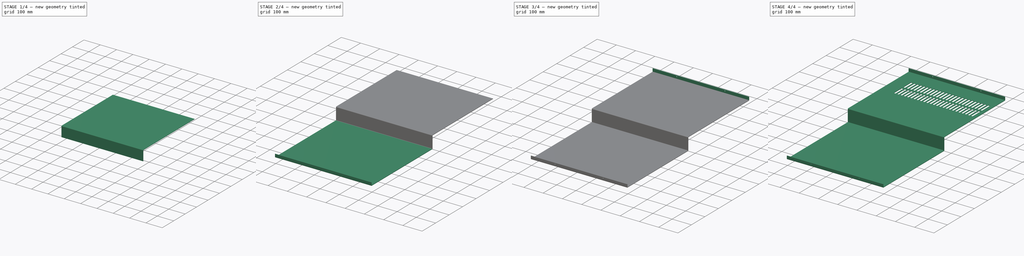
[diagram: build sequence overview — one tinted view per stage of 4, left to right]
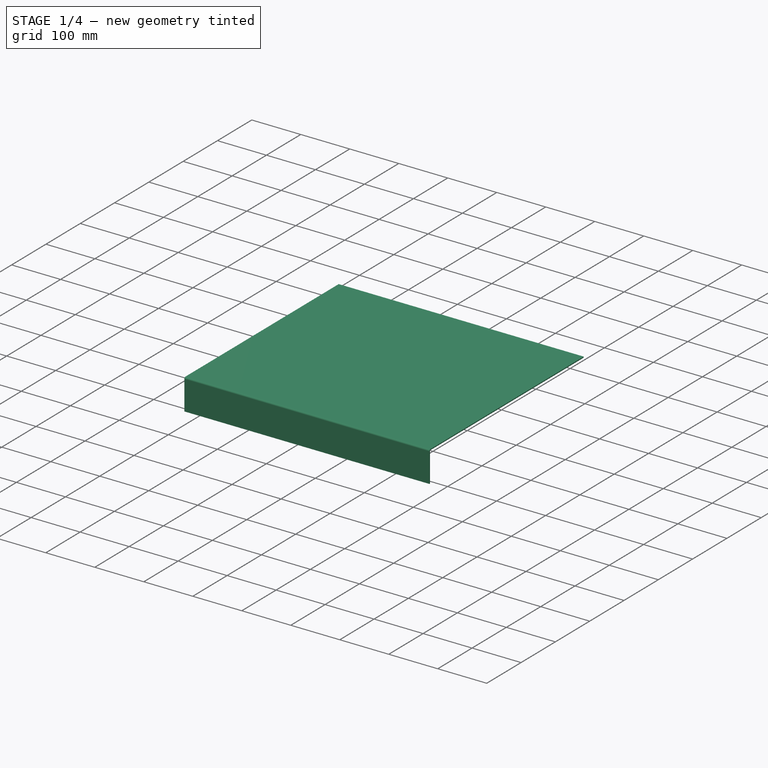
[diagram: stage 1 of 4 — iso view after this stage's code; geometry added in this stage tinted green]
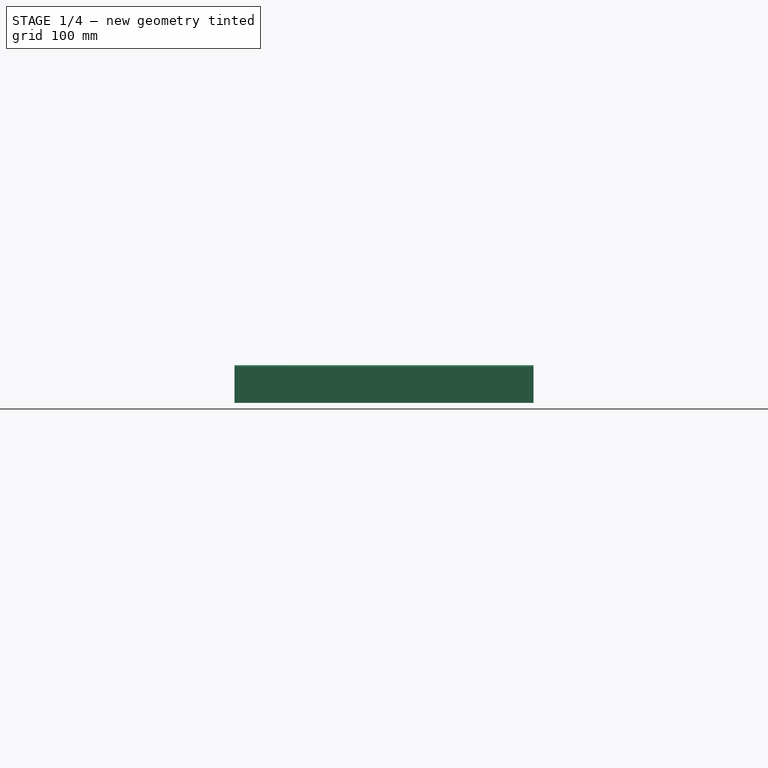
[diagram: stage 1 of 4 — front view after this stage's code; geometry added in this stage tinted green]
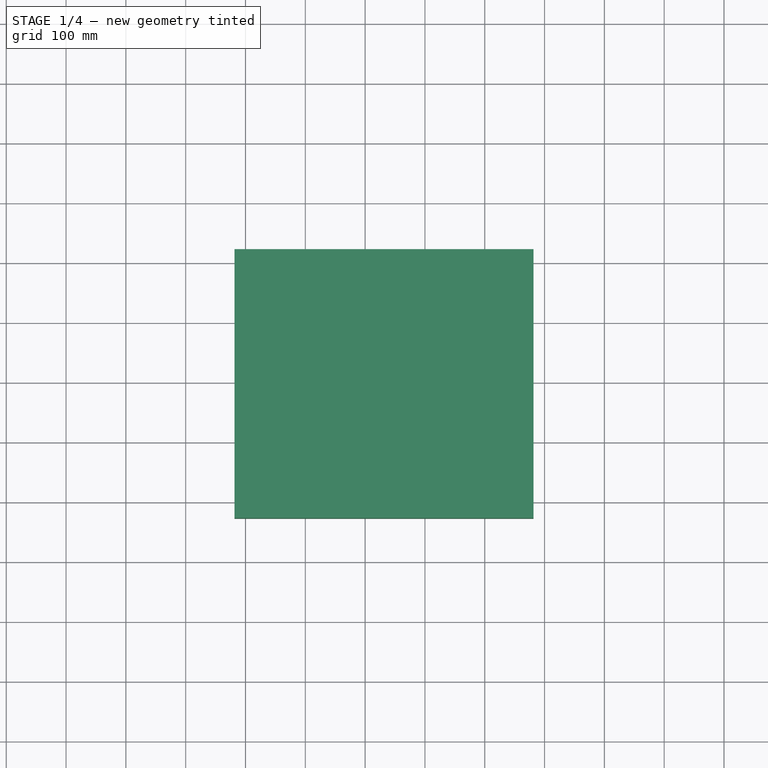
[diagram: stage 1 of 4 — top view after this stage's code; geometry added in this stage tinted green]
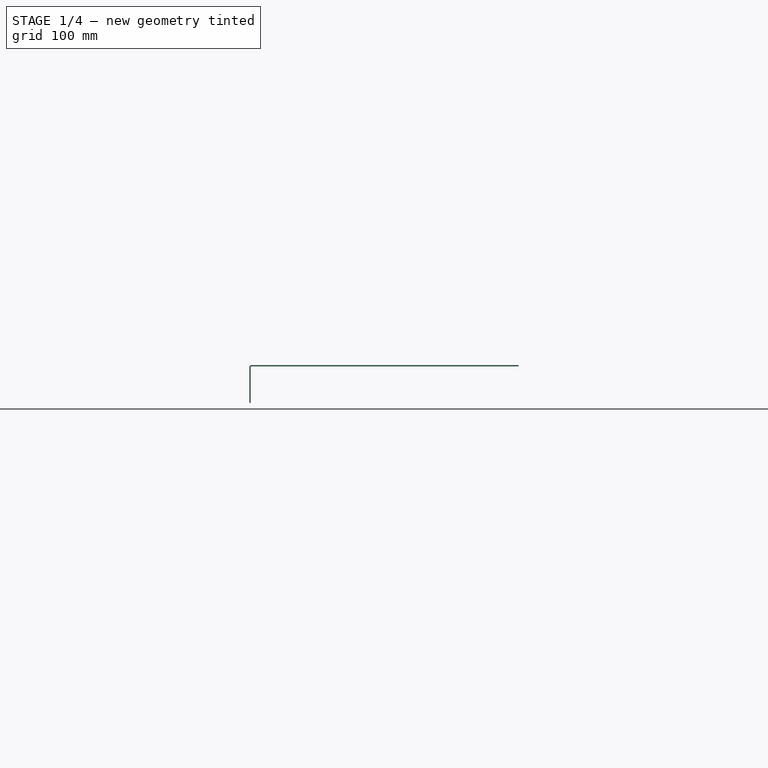
[diagram: stage 1 of 4 — right view after this stage's code; geometry added in this stage tinted green]
FCSTD DOCUMENT  (FreeCAD 0.16R6698 (Git))
Label: Switch_Side_Bended_Coating
License: All rights reserved
LicenseURL: http://en.wikipedia.org/wiki/All_rights_reserved
objects: Sketcher::SketchObject×4, Part::FeaturePython×4, PartDesign::Pocket×3, PartDesign::Pad×1, PartDesign::LinearPattern×1
note: 17 computed .brp shape members not serialized (recipe doc carries the construction recipe); baked Part::Feature solids carry a one-line shape summary decoded from their .brp

FEATURE [Sketcher::SketchObject] Sketch
  sketch-geometry (4):
    g0: LineSegment StartX=-218.439 StartY=322.983 StartZ=0 EndX=281.561 EndY=322.983 EndZ=0
    g1: LineSegment StartX=281.561 StartY=322.983 StartZ=0 EndX=281.561 EndY=-124.017 EndZ=0
    g2: LineSegment StartX=281.561 StartY=-124.017 StartZ=0 EndX=-218.439 EndY=-124.017 EndZ=0
    g3: LineSegment StartX=-218.439 StartY=-124.017 StartZ=0 EndX=-218.439 EndY=322.983 EndZ=0
  constraints (10):
    c: Coincident(g0,g1)
    c: Coincident(g1,g2)
    c: Coincident(g2,g3)
    c: Coincident(g3,g0)
    c: Horizontal(g0)
    c: Horizontal(g2)
    c: Vertical(g1)
    c: Vertical(g3)
    c: DistanceY(g3,g3) = 447
    c: DistanceX(g0,g0) = 500
FEATURE [PartDesign::Pad] Pad
  Length = 2
  Length2 = 100
  Sketch = -> Sketch
  Type = 0
FEATURE [Part::FeaturePython] Bend  # WARN: FeaturePython — macro-defined, semantics opaque (R4)
  angle = 90
  baseObject = -> Pad [Face3]
  gap1 = 0
  gap2 = 0
  invert = true
  length = 60
  radius = 1
  reliefd = 1
  reliefw = 0.5
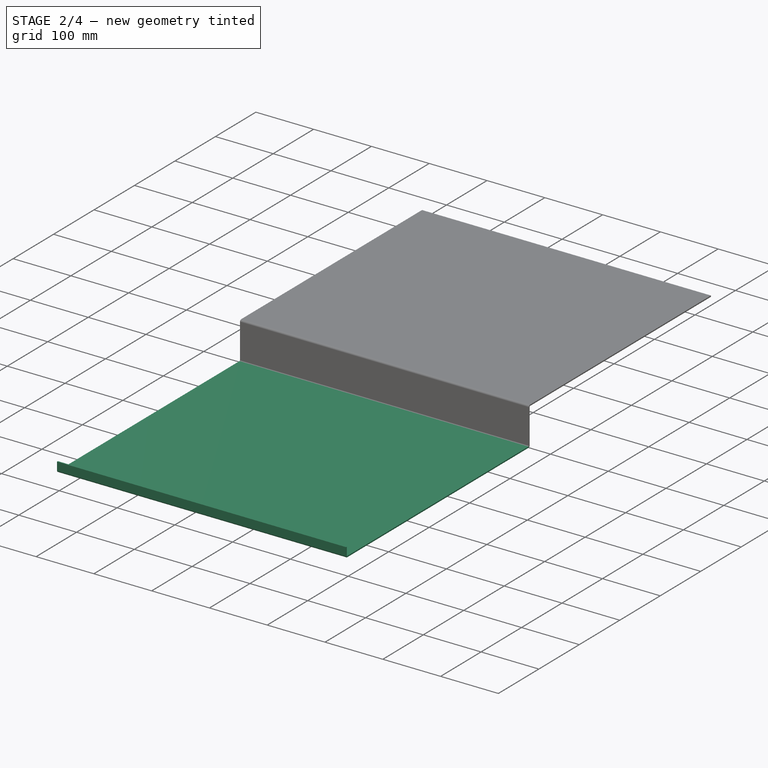
[diagram: stage 2 of 4 — iso view after this stage's code; geometry added in this stage tinted green]
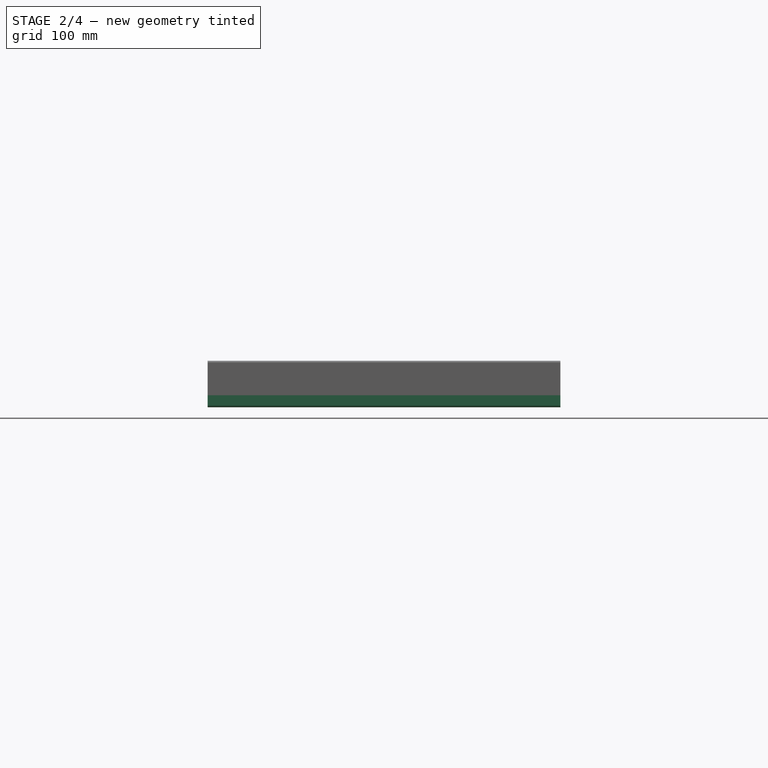
[diagram: stage 2 of 4 — front view after this stage's code; geometry added in this stage tinted green]
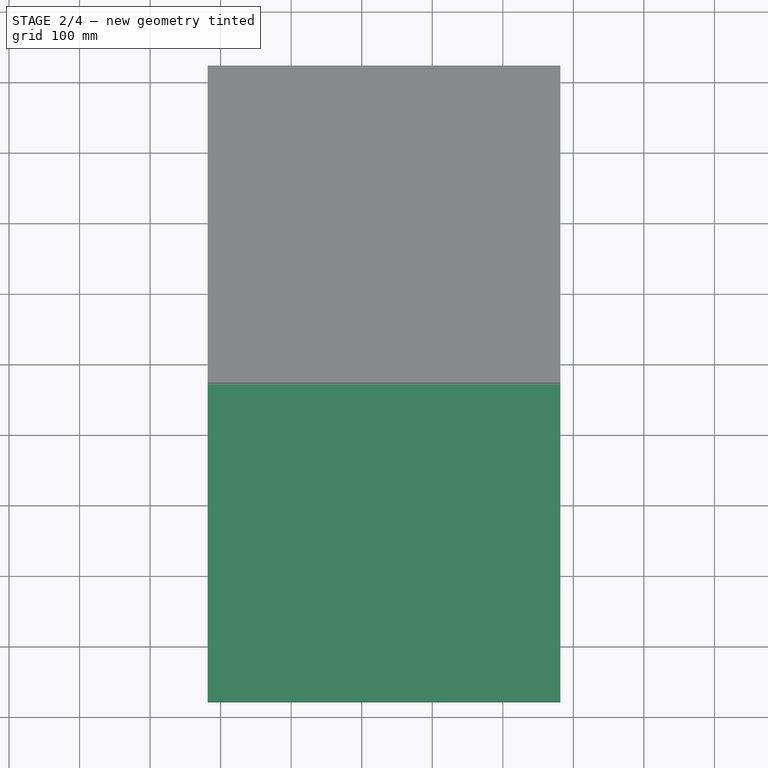
[diagram: stage 2 of 4 — top view after this stage's code; geometry added in this stage tinted green]
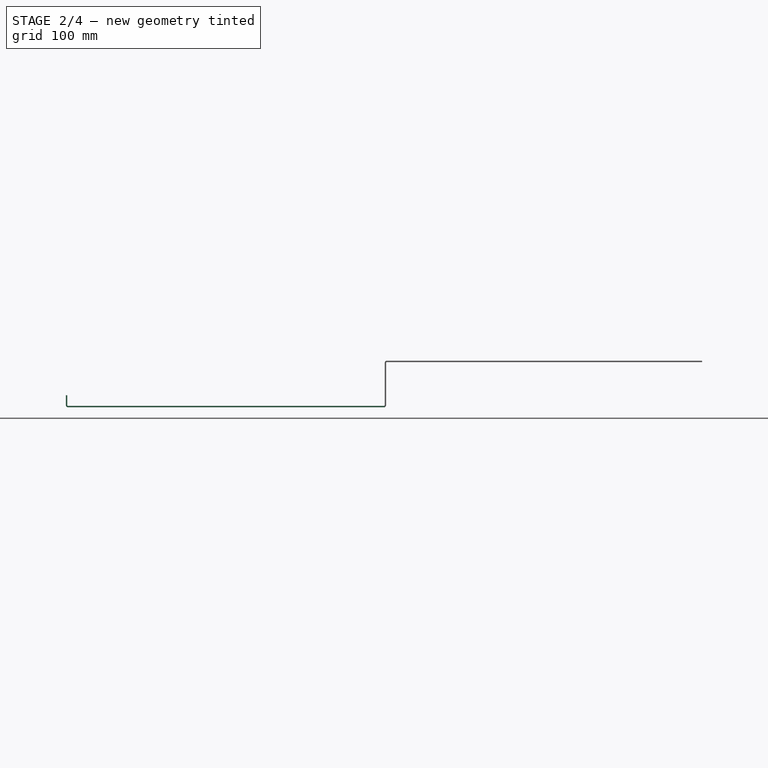
[diagram: stage 2 of 4 — right view after this stage's code; geometry added in this stage tinted green]
FEATURE [Part::FeaturePython] Bend001  # WARN: FeaturePython — macro-defined, semantics opaque (R4)
  angle = 90
  baseObject = -> Bend [Face1]
  gap1 = 0
  gap2 = 0
  invert = false
  length = 448
  radius = 1
  reliefd = 1
  reliefw = 0.5
FEATURE [Part::FeaturePython] Bend002  # WARN: FeaturePython — macro-defined, semantics opaque (R4)
  angle = 90
  baseObject = -> Bend001 [Face1]
  gap1 = 0
  gap2 = 0
  invert = false
  length = 14
  radius = 1
  reliefd = 1
  reliefw = 0.5
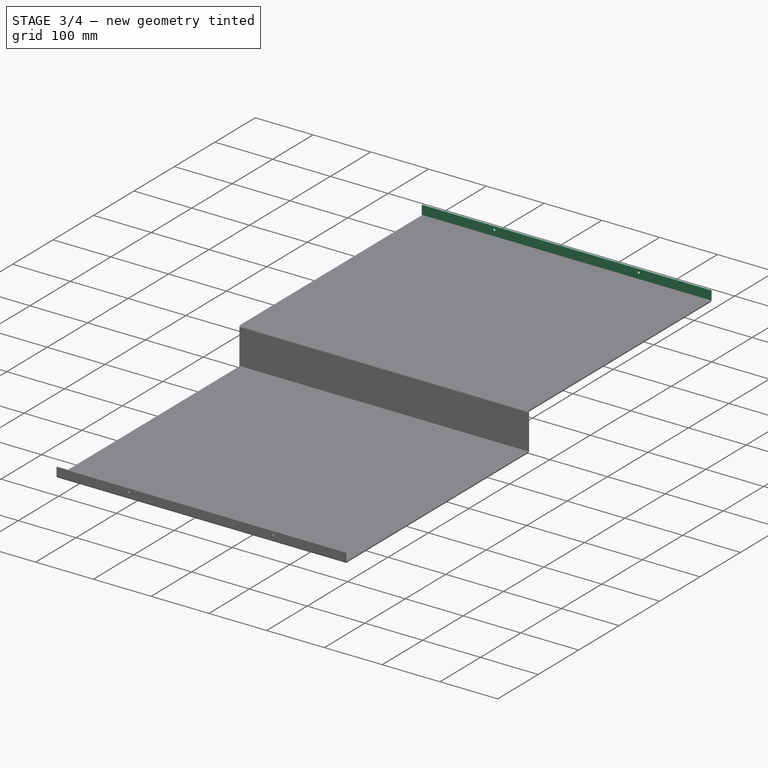
[diagram: stage 3 of 4 — iso view after this stage's code; geometry added in this stage tinted green]
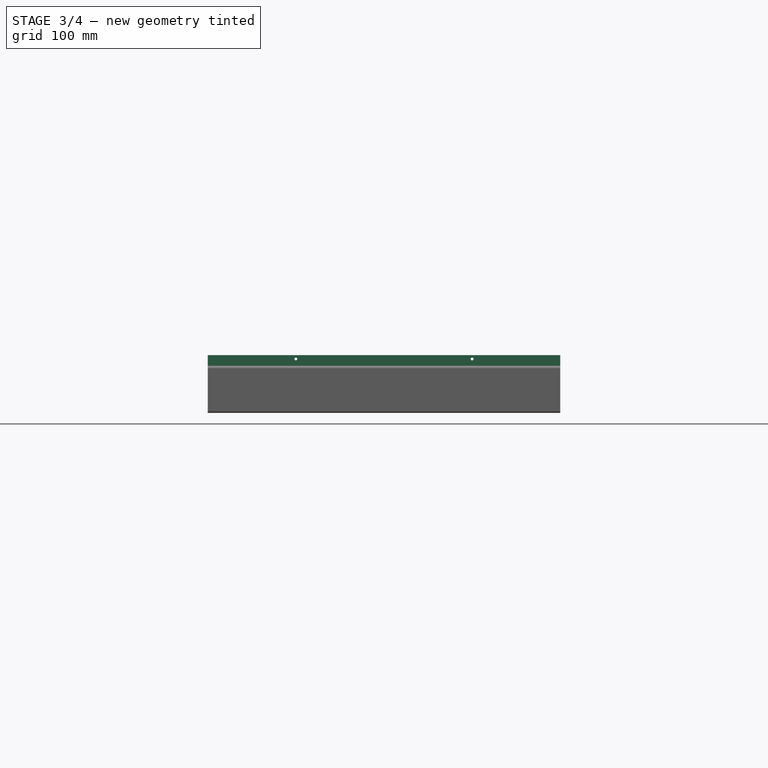
[diagram: stage 3 of 4 — front view after this stage's code; geometry added in this stage tinted green]
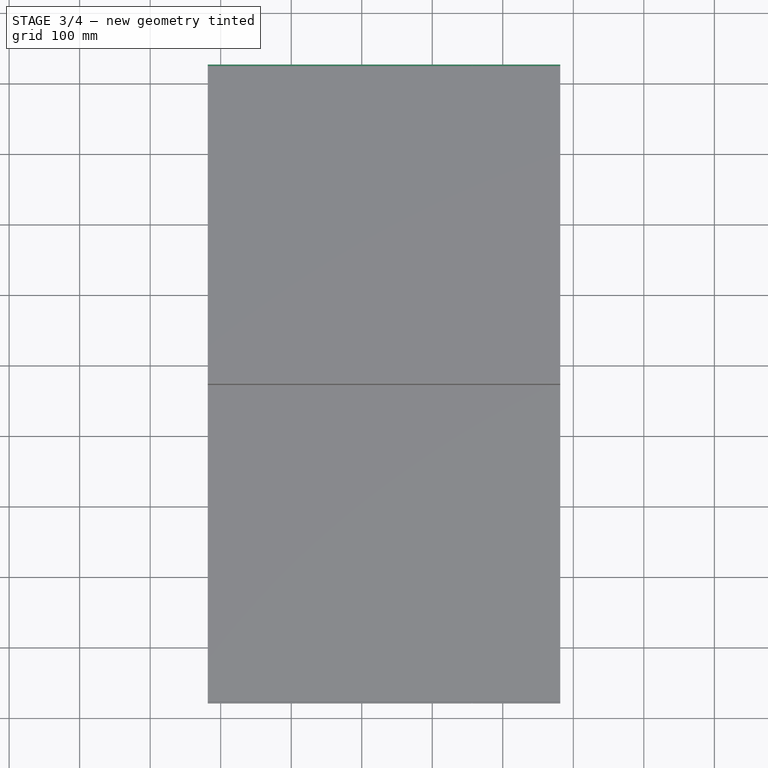
[diagram: stage 3 of 4 — top view after this stage's code; geometry added in this stage tinted green]
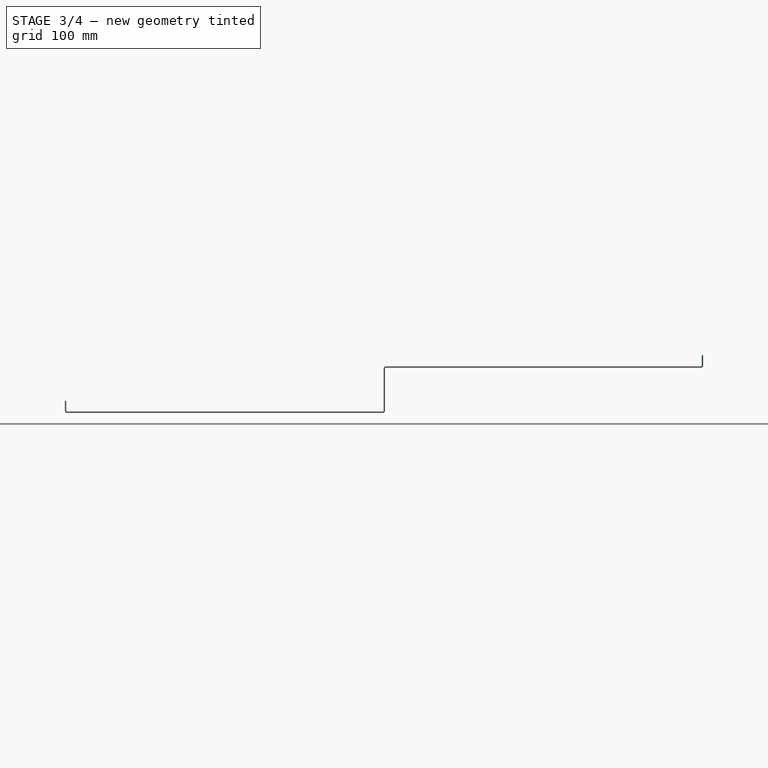
[diagram: stage 3 of 4 — right view after this stage's code; geometry added in this stage tinted green]
FEATURE [Part::FeaturePython] Bend003  # WARN: FeaturePython — macro-defined, semantics opaque (R4)
  angle = 90
  baseObject = -> Bend002 [Face30]
  gap1 = 0
  gap2 = 0
  invert = false
  length = 15
  radius = 1
  reliefd = 1
  reliefw = 0.5
FEATURE [Sketcher::SketchObject] Sketch001
  ExternalGeometry = -> [Bend003]
  Placement = pos=(0,-579.017,0) rot=(1,0,0;1.5708rad)
  Support = -> Bend003 [Face36]
  sketch-geometry (2):
    g0: Circle CenterX=-93.4388 CenterY=-52.5 CenterZ=0 NormalX=0 NormalY=0 NormalZ=1 Radius=2
    g1: Circle CenterX=156.561 CenterY=-52.5 CenterZ=0 NormalX=0 NormalY=0 NormalZ=1 Radius=2
  constraints (6):
    c: Radius(g1) = 2
    c: Equal(g1,g0)
    c: DistanceY(g0,g1) = 0
    c: DistanceX(g0,g1) = 250
    c: DistanceX(g-3,g0) = 125
    c: DistanceY(g0,g-3) = 5.5
FEATURE [PartDesign::Pocket] Pocket
  Length = 5
  Sketch = -> Sketch001
  Type = 0
FEATURE [Sketcher::SketchObject] Sketch002
  ExternalGeometry = -> [Pocket]
  Placement = pos=(0,325.983,0) rot=(0,0.707107,0.707107;3.14159rad)
  Support = -> Pocket [Face4]
  sketch-geometry (2):
    g0: Circle CenterX=-156.561 CenterY=12.5 CenterZ=0 NormalX=0 NormalY=0 NormalZ=1 Radius=2
    g1: Circle CenterX=93.4388 CenterY=12.5 CenterZ=0 NormalX=0 NormalY=0 NormalZ=1 Radius=2
  constraints (6):
    c: Radius(g1) = 2
    c: Equal(g1,g0)
    c: DistanceX(g0,g1) = 250
    c: DistanceY(g0,g1) = 0
    c: DistanceX(g-3,g0) = 125
    c: DistanceY(g0,g-3) = 5.5
FEATURE [PartDesign::Pocket] Pocket001
  Length = 5
  Sketch = -> Sketch002
  Type = 0
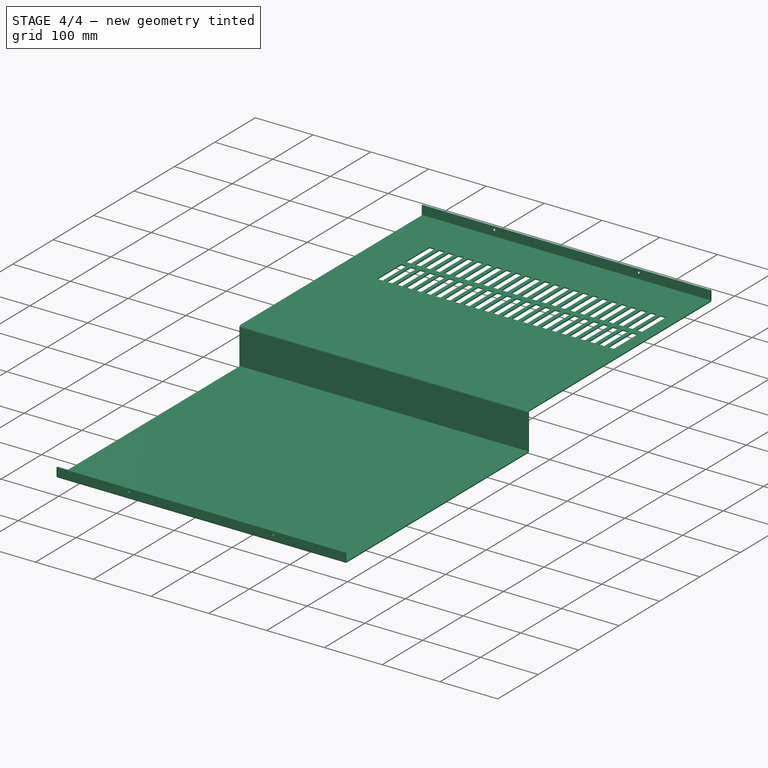
[diagram: stage 4 of 4 — iso view after this stage's code; geometry added in this stage tinted green]
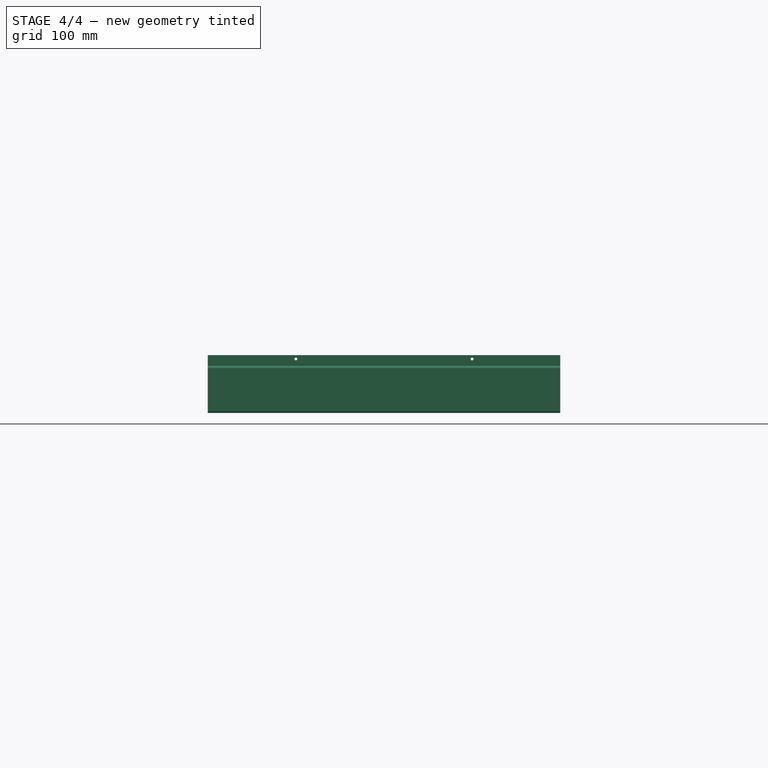
[diagram: stage 4 of 4 — front view after this stage's code; geometry added in this stage tinted green]
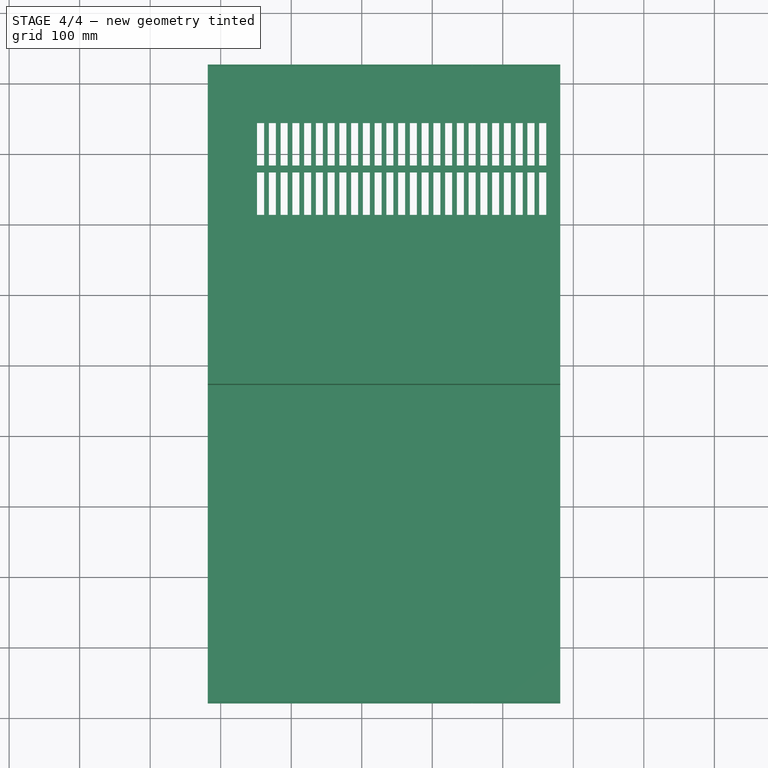
[diagram: stage 4 of 4 — top view after this stage's code; geometry added in this stage tinted green]
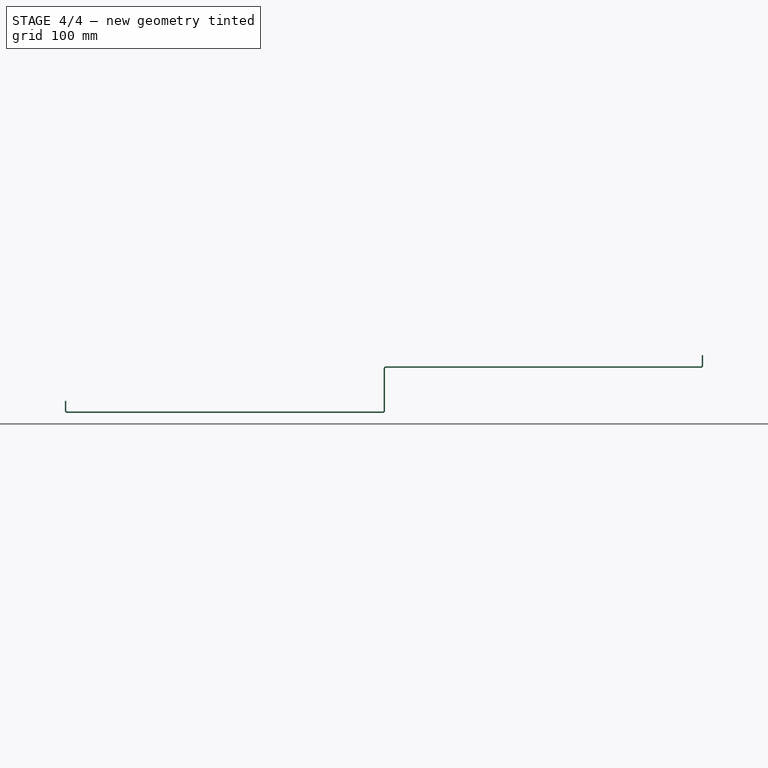
[diagram: stage 4 of 4 — right view after this stage's code; geometry added in this stage tinted green]
FEATURE [Sketcher::SketchObject] Sketch003
  ExternalGeometry = -> [Pocket001]
  Placement = pos=(0,0,0) rot=(1,0,0;3.14159rad)
  Support = -> Pocket001 [Face14]
  sketch-geometry (8):
    g0: LineSegment StartX=261.561 StartY=-112.983 StartZ=0 EndX=261.561 EndY=-172.983 EndZ=0
    g1: LineSegment StartX=261.561 StartY=-242.983 StartZ=0 EndX=251.561 EndY=-242.983 EndZ=0
    g2: LineSegment StartX=251.561 StartY=-242.983 StartZ=0 EndX=251.561 EndY=-182.983 EndZ=0
    g3: LineSegment StartX=251.561 StartY=-112.983 StartZ=0 EndX=261.561 EndY=-112.983 EndZ=0
    g4: LineSegment StartX=251.561 StartY=-172.983 StartZ=0 EndX=261.561 EndY=-172.983 EndZ=0
    g5: LineSegment StartX=251.561 StartY=-182.983 StartZ=0 EndX=261.561 EndY=-182.983 EndZ=0
    g6: LineSegment StartX=251.561 StartY=-172.983 StartZ=0 EndX=251.561 EndY=-112.983 EndZ=0
    g7: LineSegment StartX=261.561 StartY=-182.983 StartZ=0 EndX=261.561 EndY=-242.983 EndZ=0
  constraints (21):
    c: Coincident(g3,g0)
    c: Coincident(g7,g1)
    c: Horizontal(g1)
    c: Vertical(g0)
    c: Vertical(g2)
    c: PointOnObject(g3,g2)
    c: Coincident(g1,g2)
    c: DistanceX(g1,g1) = 10
    c: DistanceX(g7,g-4) = 20
    c: DistanceY(g-4,g7) = 80
    c: DistanceY(g7,g0) = 130
    c: Horizontal(g4)
    c: Horizontal(g5)
    c: Coincident(g2,g5)
    c: Coincident(g6,g4)
    c: Tangent(g2,g6)
    c: Coincident(g0,g4)
    c: Coincident(g7,g5)
    c: Tangent(g0,g7)
    c: DistanceY(g5,g0) = 10
    c: DistanceY(g0,g0) = 60
FEATURE [PartDesign::Pocket] Pocket002
  Length = 5
  Sketch = -> Sketch003
  Type = 0
FEATURE [PartDesign::LinearPattern] LinearPattern
  Direction = -> Sketch003 [H_Axis]
  Length = 400
  Occurrences = 25
  Originals = -> [Pocket002]
  Reversed = true
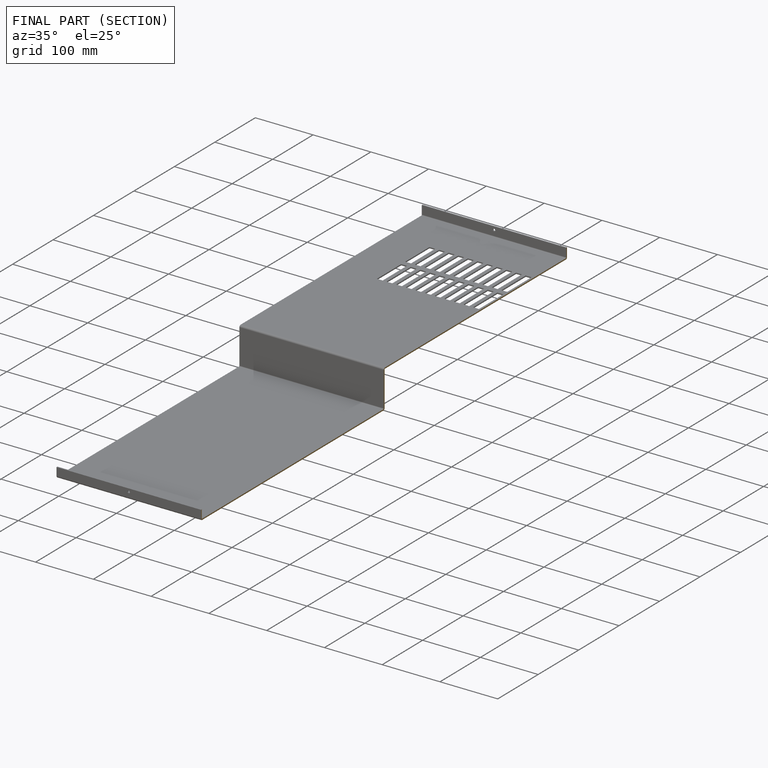
[diagram: finished part — half-section view (interior)]
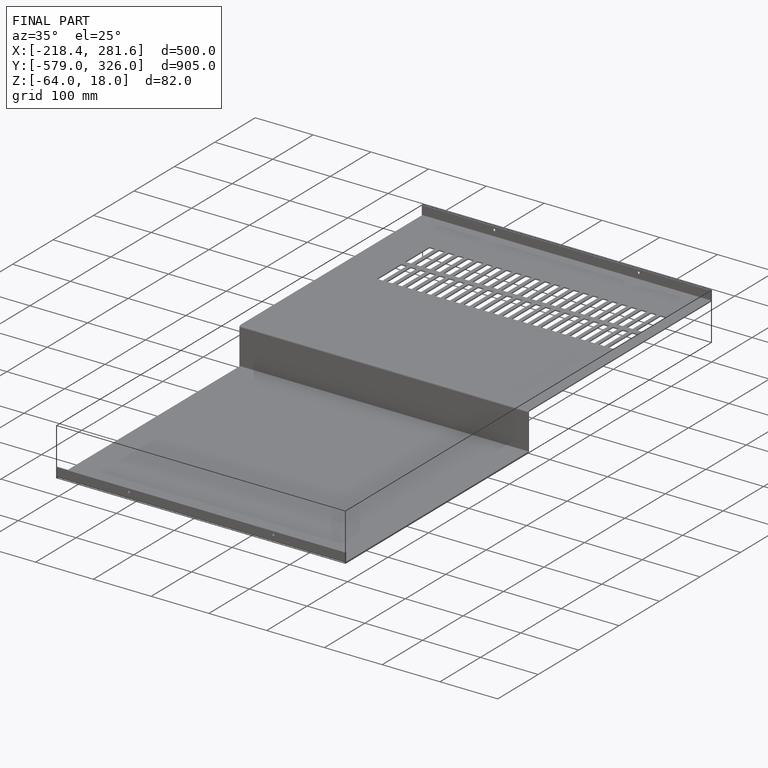
[diagram: finished part — iso view with bounding-box wireframe]
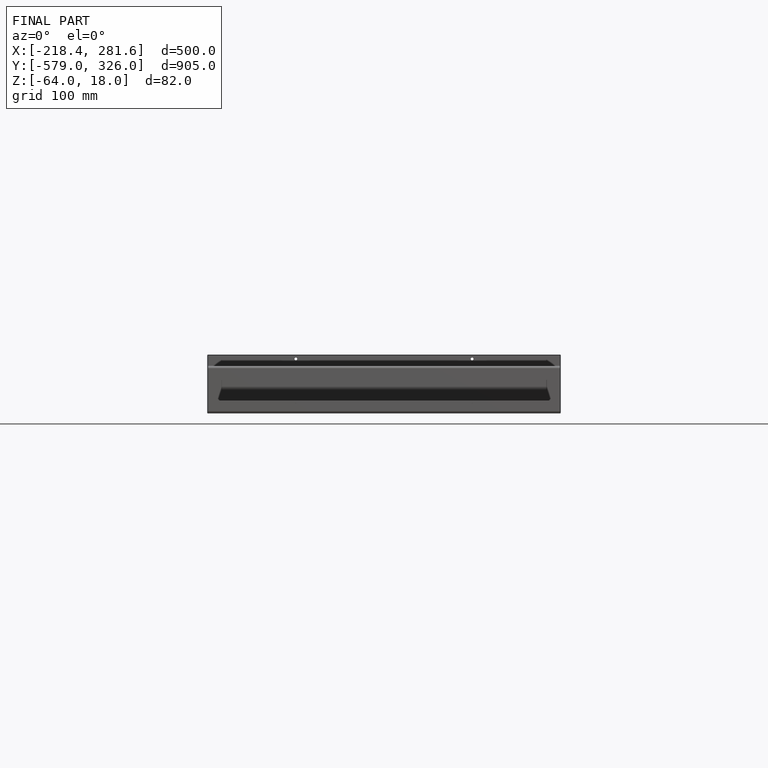
[diagram: finished part — front view with bounding-box wireframe]
